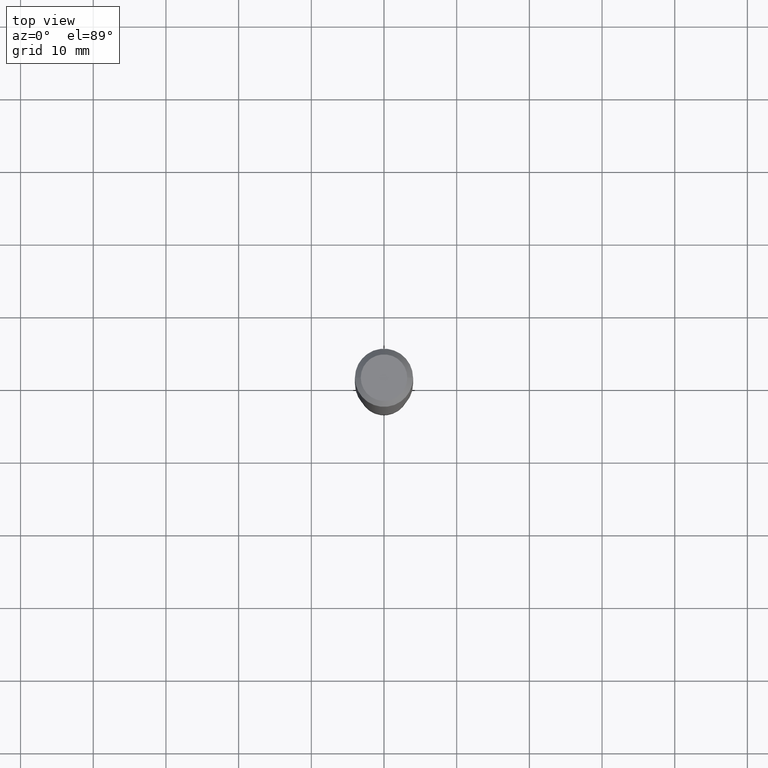
[diagram: clean part render]
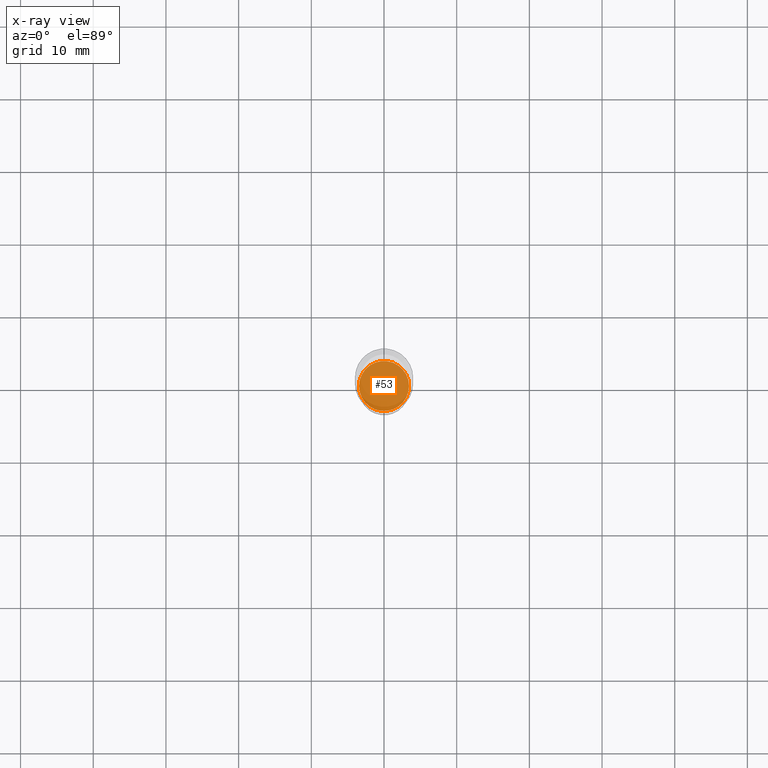
[diagram: x-ray — body ghosted, one internal face saturated and labeled with its STEP entity id]
A machine part, top view, then the same camera in x-ray: the body is ghosted and one INTERNAL B-rep face — a face not visible from any outside direction — is saturated and labeled: STEP entity #53.
In plain terms, the highlighted planar face has unit normal (-0, 0, 1).
Its self-contained STEP definition (entity closure, byte-faithful):
#3 = ORIENTED_EDGE ( 'NONE', *, *, #36, .F. ) ;
#11 = AXIS2_PLACEMENT_3D ( 'NONE', #331, #296, #359 ) ;
#30 = CIRCLE ( 'NONE', #11, 0.1353499999999999981 ) ;
#35 = AXIS2_PLACEMENT_3D ( 'NONE', #326, #441, #251 ) ;
#36 = EDGE_CURVE ( 'NONE', #393, #163, #30, .T. ) ;
#53 = ADVANCED_FACE ( 'NONE', ( #282 ), #208, .F. ) ;
#101 = EDGE_CURVE ( 'NONE', #163, #393, #434, .T. ) ;
#163 = VERTEX_POINT ( 'NONE', #376 ) ;
#196 = EDGE_LOOP ( 'NONE', ( #254, #3 ) ) ;
#208 = PLANE ( 'NONE',  #35 ) ;
#251 = DIRECTION ( 'NONE',  ( 1.000000000000000000, -6.982962677686265922E-15, 4.876176775795935793E-29 ) ) ;
#254 = ORIENTED_EDGE ( 'NONE', *, *, #101, .F. ) ;
#282 = FACE_OUTER_BOUND ( 'NONE', #196, .T. ) ;
#287 = DIRECTION ( 'NONE',  ( 1.000000000000000000, -6.982962677686265133E-15, 0.000000000000000000 ) ) ;
#294 = CARTESIAN_POINT ( 'NONE',  ( 6.402237334592686588E-29, -9.140698145091353984E-15, -2.617999999999999883 ) ) ;
#296 = DIRECTION ( 'NONE',  ( -2.445468806185136597E-29, 3.491481338843145583E-15, 1.000000000000000000 ) ) ;
#302 = CARTESIAN_POINT ( 'NONE',  ( -0.1353499999999999981, -8.176329325065948970E-15, -2.617999999999999883 ) ) ;
#326 = CARTESIAN_POINT ( 'NONE',  ( 1.378191901567385214E-28, 1.427426047613545805E-15, -2.618000000000000327 ) ) ;
#331 = CARTESIAN_POINT ( 'NONE',  ( 6.402237334592686588E-29, -9.140698145091353984E-15, -2.617999999999999883 ) ) ;
#359 = DIRECTION ( 'NONE',  ( 1.000000000000000000, -6.982962677686265133E-15, 0.000000000000000000 ) ) ;
#365 = AXIS2_PLACEMENT_3D ( 'NONE', #294, #489, #287 ) ;
#376 = CARTESIAN_POINT ( 'NONE',  ( 0.1353499999999999981, -1.008584214351618994E-14, -2.617999999999999883 ) ) ;
#393 = VERTEX_POINT ( 'NONE', #302 ) ;
#434 = CIRCLE ( 'NONE', #365, 0.1353499999999999981 ) ;
#441 = DIRECTION ( 'NONE',  ( -2.438088387897960049E-29, 3.491481338843145188E-15, 1.000000000000000000 ) ) ;
#489 = DIRECTION ( 'NONE',  ( -2.445468806185136597E-29, 3.491481338843145583E-15, 1.000000000000000000 ) ) ;